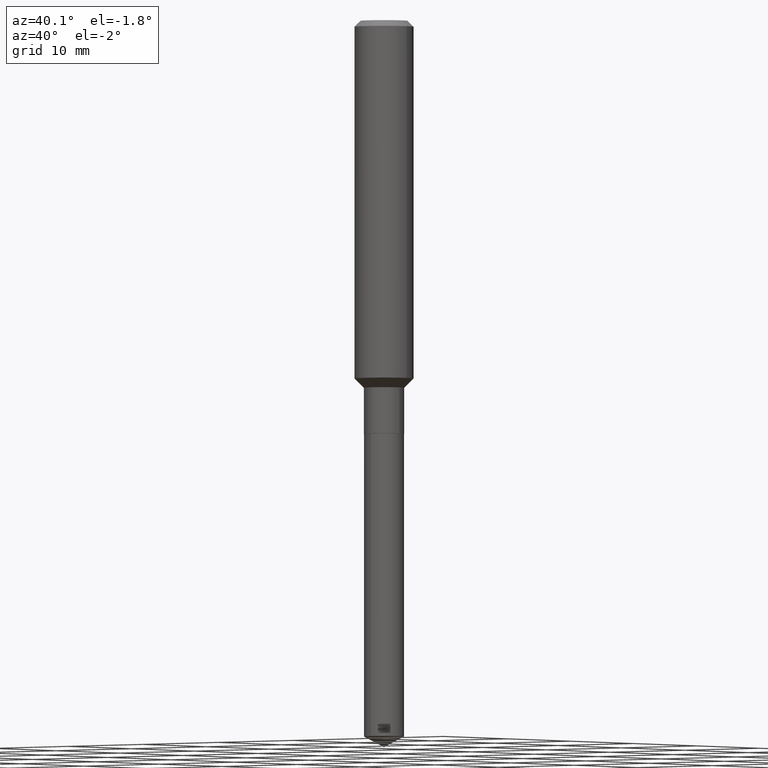
[diagram: clean part render]
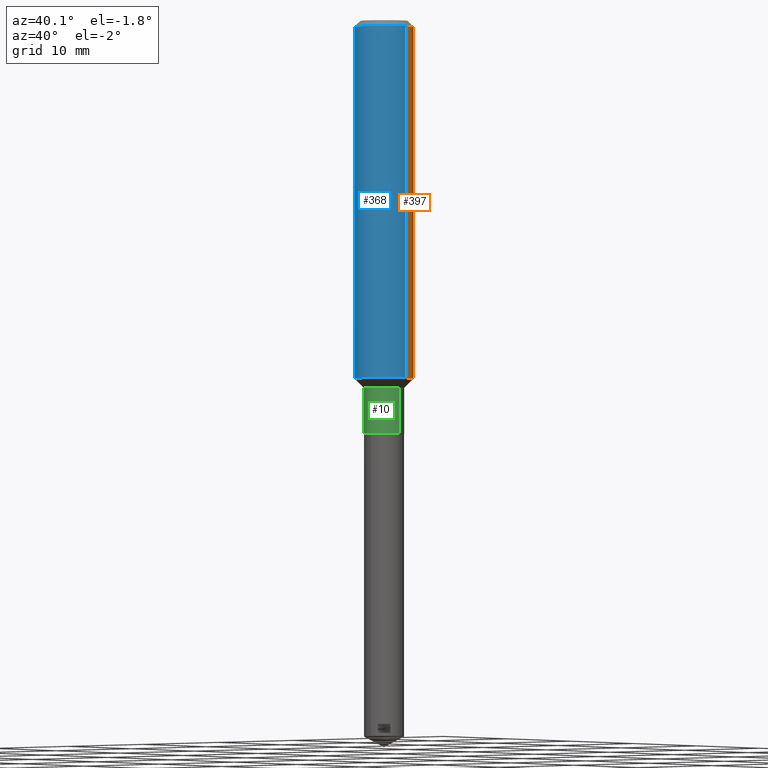
[diagram: same view with three faces highlighted in distinct colors, each labeled with its STEP entity id]
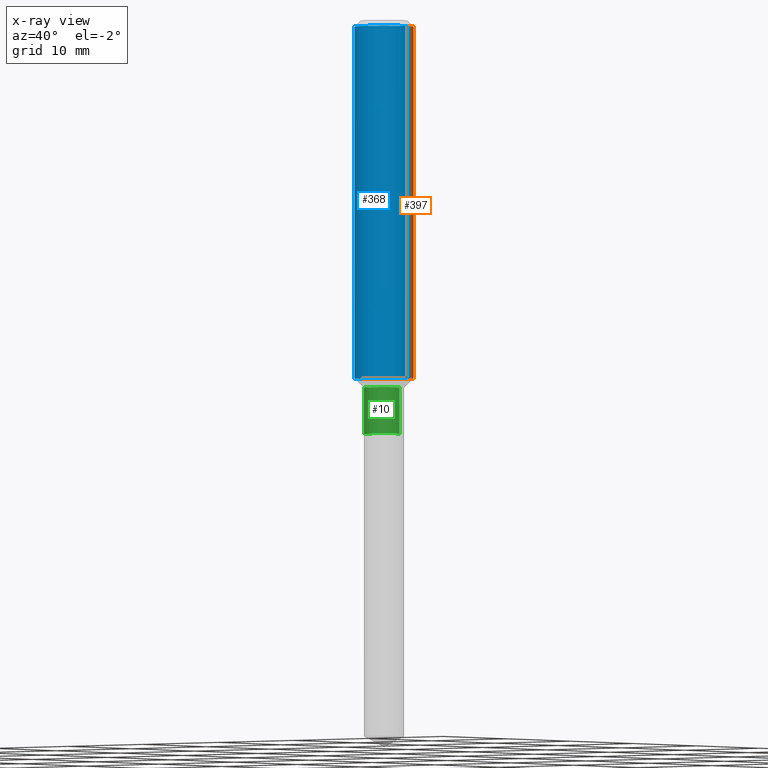
[diagram: x-ray of the same camera — body ghosted, the three highlighted faces saturated]
A machine part, auxiliary view with three faces highlighted in distinct colors.
The next image is the same camera in x-ray (body ghosted, the three faces saturated) — at least one of them is partly hidden behind the body in this view.
Their STEP definitions:

[orange] entity #397 — the highlighted cylindrical surface (edge-blend (fillet) strip) has radius 2.9997 mm, axis along (-0, 0, 1).
#4 = CYLINDRICAL_SURFACE ( 'NONE', #141, 0.1181000000000000799 ) ;
#7 = LINE ( 'NONE', #381, #209 ) ;
#40 = DIRECTION ( 'NONE',  ( -2.445468806185136877E-29, 3.491481338843145188E-15, 1.000000000000000000 ) ) ;
#66 = VERTEX_POINT ( 'NONE', #231 ) ;
#113 = CARTESIAN_POINT ( 'NONE',  ( -0.1181000000000000799, 8.391509709326788873E-16, -5.809262341591047988E-30 ) ) ;
#136 = EDGE_CURVE ( 'NONE', #350, #201, #431, .T. ) ;
#138 = CARTESIAN_POINT ( 'NONE',  ( 0.1180999999999999966, -9.071566814582237199E-16, -0.02362000000000014435 ) ) ;
#141 = AXIS2_PLACEMENT_3D ( 'NONE', #339, #310, #374 ) ;
#172 = EDGE_CURVE ( 'NONE', #201, #66, #416, .T. ) ;
#178 = CARTESIAN_POINT ( 'NONE',  ( 0.1181000000000001632, -5.833217872805242372E-15, -1.434500000000000330 ) ) ;
#186 = CARTESIAN_POINT ( 'NONE',  ( -0.1181000000000001632, -4.169379009637814335E-15, -1.434500000000000330 ) ) ;
#188 = CARTESIAN_POINT ( 'NONE',  ( 5.776197320209328408E-31, -8.246878922347560526E-17, -0.02362000000000014435 ) ) ;
#201 = VERTEX_POINT ( 'NONE', #186 ) ;
#203 = AXIS2_PLACEMENT_3D ( 'NONE', #188, #444, #477 ) ;
#204 = ORIENTED_EDGE ( 'NONE', *, *, #136, .T. ) ;
#209 = VECTOR ( 'NONE', #40, 39.37007874015748143 ) ;
#219 = EDGE_CURVE ( 'NONE', #350, #313, #7, .T. ) ;
#231 = CARTESIAN_POINT ( 'NONE',  ( -0.1180999999999999966, -1.706348413964304614E-15, -0.02362000000000014435 ) ) ;
#234 = VECTOR ( 'NONE', #448, 39.37007874015748143 ) ;
#239 = CARTESIAN_POINT ( 'NONE',  ( 3.508025002472578731E-29, -5.008529980570492532E-15, -1.434500000000000330 ) ) ;
#275 = FACE_OUTER_BOUND ( 'NONE', #418, .T. ) ;
#310 = DIRECTION ( 'NONE',  ( -2.445468806185136597E-29, 3.491481338843145583E-15, 1.000000000000000000 ) ) ;
#312 = DIRECTION ( 'NONE',  ( 1.000000000000000000, -6.982962677686263555E-15, 0.000000000000000000 ) ) ;
#313 = VERTEX_POINT ( 'NONE', #138 ) ;
#324 = AXIS2_PLACEMENT_3D ( 'NONE', #239, #413, #312 ) ;
#329 = CIRCLE ( 'NONE', #203, 0.1180999999999999966 ) ;
#333 = ORIENTED_EDGE ( 'NONE', *, *, #172, .T. ) ;
#339 = CARTESIAN_POINT ( 'NONE',  ( 0.000000000000000000, 0.000000000000000000, 0.000000000000000000 ) ) ;
#350 = VERTEX_POINT ( 'NONE', #178 ) ;
#360 = EDGE_CURVE ( 'NONE', #313, #66, #329, .T. ) ;
#374 = DIRECTION ( 'NONE',  ( 1.000000000000000000, -6.982962677686266711E-15, 4.876176775795936353E-29 ) ) ;
#381 = CARTESIAN_POINT ( 'NONE',  ( 0.1181000000000000799, -8.246878922347486570E-16, 5.758764772215004644E-30 ) ) ;
#397 = ADVANCED_FACE ( 'NONE', ( #275 ), #4, .T. ) ;
#413 = DIRECTION ( 'NONE',  ( -2.445468806185136597E-29, 3.491481338843145583E-15, 1.000000000000000000 ) ) ;
#416 = LINE ( 'NONE', #113, #234 ) ;
#418 = EDGE_LOOP ( 'NONE', ( #204, #333, #479, #428 ) ) ;
#428 = ORIENTED_EDGE ( 'NONE', *, *, #219, .F. ) ;
#431 = CIRCLE ( 'NONE', #324, 0.1181000000000001632 ) ;
#444 = DIRECTION ( 'NONE',  ( -2.445468806185136597E-29, 3.491481338843145583E-15, 1.000000000000000000 ) ) ;
#448 = DIRECTION ( 'NONE',  ( -2.445468806185136877E-29, 3.491481338843145188E-15, 1.000000000000000000 ) ) ;
#477 = DIRECTION ( 'NONE',  ( 1.000000000000000000, -6.982962677686266711E-15, 0.000000000000000000 ) ) ;
#479 = ORIENTED_EDGE ( 'NONE', *, *, #360, .F. ) ;

[blue] entity #368 — the highlighted cylindrical surface (edge-blend (fillet) strip) has radius 2.9997 mm, axis along (-0, 0, 1).
#2 = ORIENTED_EDGE ( 'NONE', *, *, #172, .F. ) ;
#7 = LINE ( 'NONE', #381, #209 ) ;
#29 = CARTESIAN_POINT ( 'NONE',  ( 5.776197320209328408E-31, -8.246878922347560526E-17, -0.02362000000000014435 ) ) ;
#40 = DIRECTION ( 'NONE',  ( -2.445468806185136877E-29, 3.491481338843145188E-15, 1.000000000000000000 ) ) ;
#66 = VERTEX_POINT ( 'NONE', #231 ) ;
#70 = FACE_OUTER_BOUND ( 'NONE', #348, .T. ) ;
#113 = CARTESIAN_POINT ( 'NONE',  ( -0.1181000000000000799, 8.391509709326788873E-16, -5.809262341591047988E-30 ) ) ;
#120 = CIRCLE ( 'NONE', #388, 0.1181000000000001632 ) ;
#138 = CARTESIAN_POINT ( 'NONE',  ( 0.1180999999999999966, -9.071566814582237199E-16, -0.02362000000000014435 ) ) ;
#146 = CYLINDRICAL_SURFACE ( 'NONE', #359, 0.1181000000000000799 ) ;
#166 = CARTESIAN_POINT ( 'NONE',  ( 3.508025002472578731E-29, -5.008529980570492532E-15, -1.434500000000000330 ) ) ;
#172 = EDGE_CURVE ( 'NONE', #201, #66, #416, .T. ) ;
#178 = CARTESIAN_POINT ( 'NONE',  ( 0.1181000000000001632, -5.833217872805242372E-15, -1.434500000000000330 ) ) ;
#186 = CARTESIAN_POINT ( 'NONE',  ( -0.1181000000000001632, -4.169379009637814335E-15, -1.434500000000000330 ) ) ;
#199 = EDGE_CURVE ( 'NONE', #66, #313, #423, .T. ) ;
#201 = VERTEX_POINT ( 'NONE', #186 ) ;
#209 = VECTOR ( 'NONE', #40, 39.37007874015748143 ) ;
#219 = EDGE_CURVE ( 'NONE', #350, #313, #7, .T. ) ;
#231 = CARTESIAN_POINT ( 'NONE',  ( -0.1180999999999999966, -1.706348413964304614E-15, -0.02362000000000014435 ) ) ;
#234 = VECTOR ( 'NONE', #448, 39.37007874015748143 ) ;
#243 = ORIENTED_EDGE ( 'NONE', *, *, #199, .F. ) ;
#244 = AXIS2_PLACEMENT_3D ( 'NONE', #29, #407, #269 ) ;
#269 = DIRECTION ( 'NONE',  ( 1.000000000000000000, -6.982962677686266711E-15, 0.000000000000000000 ) ) ;
#306 = DIRECTION ( 'NONE',  ( 1.000000000000000000, -6.982962677686263555E-15, 0.000000000000000000 ) ) ;
#313 = VERTEX_POINT ( 'NONE', #138 ) ;
#318 = DIRECTION ( 'NONE',  ( -2.445468806185136597E-29, 3.491481338843145583E-15, 1.000000000000000000 ) ) ;
#348 = EDGE_LOOP ( 'NONE', ( #2, #414, #382, #243 ) ) ;
#350 = VERTEX_POINT ( 'NONE', #178 ) ;
#359 = AXIS2_PLACEMENT_3D ( 'NONE', #439, #318, #372 ) ;
#368 = ADVANCED_FACE ( 'NONE', ( #70 ), #146, .T. ) ;
#372 = DIRECTION ( 'NONE',  ( 1.000000000000000000, -6.982962677686266711E-15, 4.876176775795936353E-29 ) ) ;
#381 = CARTESIAN_POINT ( 'NONE',  ( 0.1181000000000000799, -8.246878922347486570E-16, 5.758764772215004644E-30 ) ) ;
#382 = ORIENTED_EDGE ( 'NONE', *, *, #219, .T. ) ;
#388 = AXIS2_PLACEMENT_3D ( 'NONE', #166, #415, #306 ) ;
#407 = DIRECTION ( 'NONE',  ( -2.445468806185136597E-29, 3.491481338843145583E-15, 1.000000000000000000 ) ) ;
#414 = ORIENTED_EDGE ( 'NONE', *, *, #457, .T. ) ;
#415 = DIRECTION ( 'NONE',  ( -2.445468806185136597E-29, 3.491481338843145583E-15, 1.000000000000000000 ) ) ;
#416 = LINE ( 'NONE', #113, #234 ) ;
#423 = CIRCLE ( 'NONE', #244, 0.1180999999999999966 ) ;
#439 = CARTESIAN_POINT ( 'NONE',  ( 0.000000000000000000, 0.000000000000000000, 0.000000000000000000 ) ) ;
#448 = DIRECTION ( 'NONE',  ( -2.445468806185136877E-29, 3.491481338843145188E-15, 1.000000000000000000 ) ) ;
#457 = EDGE_CURVE ( 'NONE', #201, #350, #120, .T. ) ;

[green] entity #10 — the highlighted cylindrical surface (edge-blend (fillet) strip) has radius 2.0498 mm, axis along (-0, 0, 1).
#8 = LINE ( 'NONE', #480, #311 ) ;
#10 = ADVANCED_FACE ( 'NONE', ( #88 ), #394, .T. ) ;
#31 = DIRECTION ( 'NONE',  ( 1.000000000000000000, -6.982962677686261977E-15, 0.000000000000000000 ) ) ;
#32 = CARTESIAN_POINT ( 'NONE',  ( 0.08069999999999999396, -6.348909666552373459E-15, -1.657000000000000028 ) ) ;
#33 = AXIS2_PLACEMENT_3D ( 'NONE', #347, #315, #410 ) ;
#45 = VECTOR ( 'NONE', #189, 39.37007874015748143 ) ;
#88 = FACE_OUTER_BOUND ( 'NONE', #257, .T. ) ;
#94 = CIRCLE ( 'NONE', #316, 0.08069999999999998008 ) ;
#102 = DIRECTION ( 'NONE',  ( -2.445468806185136877E-29, 3.491481338843145188E-15, 1.000000000000000000 ) ) ;
#105 = EDGE_CURVE ( 'NONE', #165, #160, #454, .T. ) ;
#119 = LINE ( 'NONE', #349, #45 ) ;
#121 = CARTESIAN_POINT ( 'NONE',  ( -0.08069999999999998008, -4.888839992794759829E-15, -1.471900000000000208 ) ) ;
#123 = CARTESIAN_POINT ( 'NONE',  ( 3.599485535823903241E-29, -5.139111382643227310E-15, -1.471900000000000208 ) ) ;
#140 = VERTEX_POINT ( 'NONE', #121 ) ;
#160 = VERTEX_POINT ( 'NONE', #32 ) ;
#165 = VERTEX_POINT ( 'NONE', #445 ) ;
#177 = DIRECTION ( 'NONE',  ( -2.445468806185136597E-29, 3.491481338843145583E-15, 1.000000000000000000 ) ) ;
#184 = ORIENTED_EDGE ( 'NONE', *, *, #192, .F. ) ;
#189 = DIRECTION ( 'NONE',  ( -2.445468806185136877E-29, 3.491481338843145188E-15, 1.000000000000000000 ) ) ;
#192 = EDGE_CURVE ( 'NONE', #165, #140, #119, .T. ) ;
#213 = CARTESIAN_POINT ( 'NONE',  ( 0.000000000000000000, 0.000000000000000000, 0.000000000000000000 ) ) ;
#237 = VERTEX_POINT ( 'NONE', #319 ) ;
#241 = ORIENTED_EDGE ( 'NONE', *, *, #446, .T. ) ;
#257 = EDGE_LOOP ( 'NONE', ( #184, #402, #241, #263 ) ) ;
#263 = ORIENTED_EDGE ( 'NONE', *, *, #409, .F. ) ;
#264 = DIRECTION ( 'NONE',  ( -2.445468806185136597E-29, 3.491481338843145583E-15, 1.000000000000000000 ) ) ;
#311 = VECTOR ( 'NONE', #102, 39.37007874015748143 ) ;
#315 = DIRECTION ( 'NONE',  ( -2.445468806185136597E-29, 3.491481338843145583E-15, 1.000000000000000000 ) ) ;
#316 = AXIS2_PLACEMENT_3D ( 'NONE', #123, #264, #31 ) ;
#319 = CARTESIAN_POINT ( 'NONE',  ( 0.08069999999999998008, -5.702636470732508383E-15, -1.471900000000000208 ) ) ;
#331 = DIRECTION ( 'NONE',  ( 1.000000000000000000, -6.982962677686265133E-15, 4.876176775795935232E-29 ) ) ;
#347 = CARTESIAN_POINT ( 'NONE',  ( 4.052141811848771691E-29, -5.785384578463092385E-15, -1.657000000000000028 ) ) ;
#349 = CARTESIAN_POINT ( 'NONE',  ( -0.08069999999999998008, 5.734079877584007085E-16, -3.969580617835708043E-30 ) ) ;
#394 = CYLINDRICAL_SURFACE ( 'NONE', #425, 0.08069999999999998008 ) ;
#402 = ORIENTED_EDGE ( 'NONE', *, *, #105, .T. ) ;
#409 = EDGE_CURVE ( 'NONE', #140, #237, #94, .T. ) ;
#410 = DIRECTION ( 'NONE',  ( 1.000000000000000000, -6.982962677686260400E-15, 0.000000000000000000 ) ) ;
#425 = AXIS2_PLACEMENT_3D ( 'NONE', #213, #177, #331 ) ;
#445 = CARTESIAN_POINT ( 'NONE',  ( -0.08069999999999999396, -4.888839992794759829E-15, -1.657000000000000028 ) ) ;
#446 = EDGE_CURVE ( 'NONE', #160, #237, #8, .T. ) ;
#454 = CIRCLE ( 'NONE', #33, 0.08069999999999999396 ) ;
#480 = CARTESIAN_POINT ( 'NONE',  ( 0.08069999999999998008, -5.635250880892814680E-16, 3.935074658067318957E-30 ) ) ;